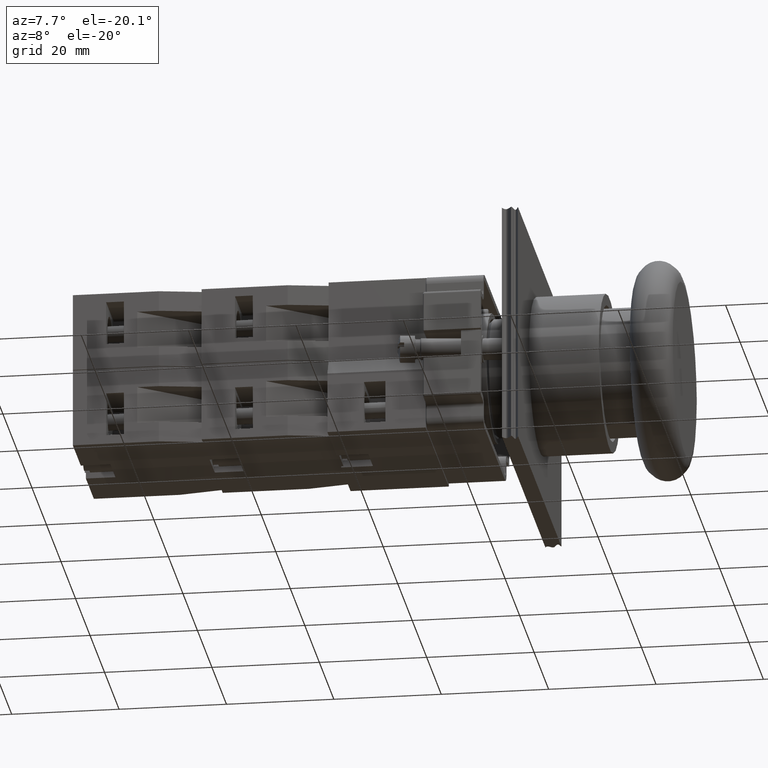
[diagram: clean part render]
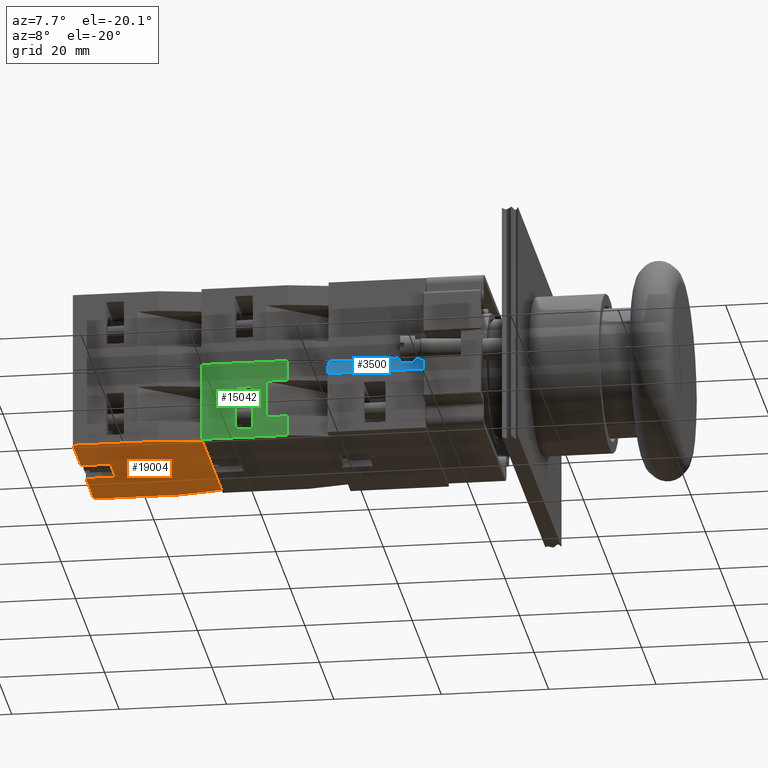
[diagram: same view with three faces highlighted in distinct colors, each labeled with its STEP entity id]
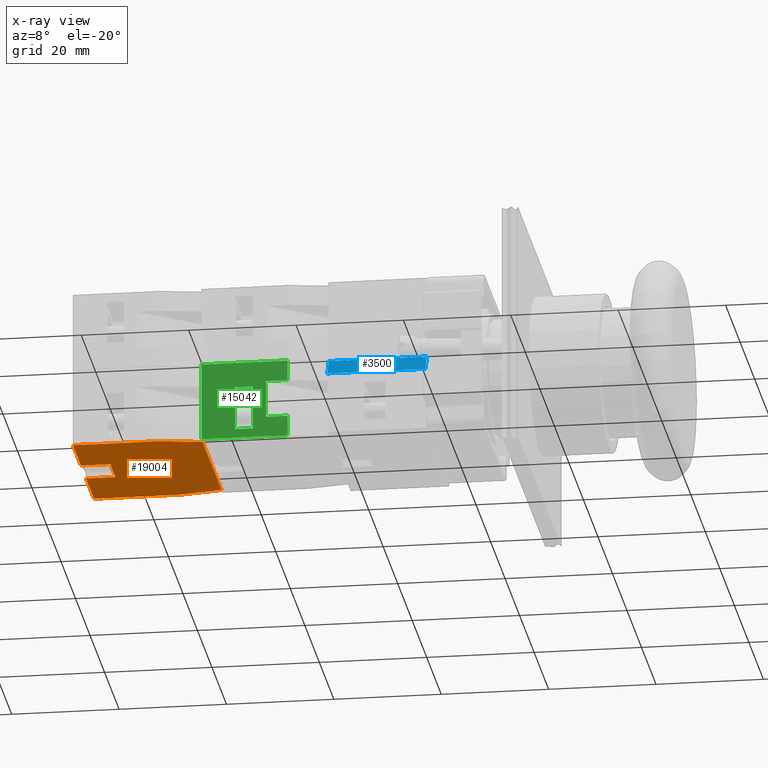
[diagram: x-ray of the same camera — body ghosted, the three highlighted faces saturated]
A machine part, auxiliary view with three faces highlighted in distinct colors.
The next image is the same camera in x-ray (body ghosted, the three faces saturated) — at least one of them is partly hidden behind the body in this view.
Their STEP definitions:

[orange] entity #19004 — the highlighted planar face has unit normal (-0, 0, -1).
#17307=CARTESIAN_POINT('',(-44.936741828918457,7.797073323279626,14.699999999999999));
#17308=VERTEX_POINT('',#17307);
#17315=CARTESIAN_POINT('',(-44.936741828918471,23.797073323279623,14.699999999999999));
#17316=VERTEX_POINT('',#17315);
#17317=CARTESIAN_POINT('',(-44.936741828918457,7.797073323279626,14.699999999999999));
#17318=DIRECTION('',(0.0,1.0,0.0));
#17319=VECTOR('',#17318,15.999999999999996);
#17320=LINE('',#17317,#17319);
#17321=EDGE_CURVE('',#17308,#17316,#17320,.T.);
#17388=CARTESIAN_POINT('',(-43.436741828918457,-0.202926676720380,14.699999999999999));
#17389=VERTEX_POINT('',#17388);
#17396=CARTESIAN_POINT('',(-43.436741828918457,-0.202926676720380,14.699999999999999));
#17397=DIRECTION('',(-0.184288535050185,0.982872186934322,0.0));
#17398=VECTOR('',#17397,8.139410298049860);
#17399=LINE('',#17396,#17398);
#17400=EDGE_CURVE('',#17389,#17308,#17399,.T.);
#17539=CARTESIAN_POINT('',(-17.436741828918457,-0.202926676720377,14.699999999999999));
#17540=VERTEX_POINT('',#17539);
#17547=CARTESIAN_POINT('',(-17.436741828918457,-0.202926676720377,14.699999999999999));
#17548=DIRECTION('',(-1.0,0.0,0.0));
#17549=VECTOR('',#17548,26.0);
#17550=LINE('',#17547,#17549);
#17551=EDGE_CURVE('',#17540,#17389,#17550,.T.);
#17632=CARTESIAN_POINT('',(-15.936741828918466,7.797073323279626,14.699999999999999));
#17633=VERTEX_POINT('',#17632);
#17640=CARTESIAN_POINT('',(-15.936741828918466,7.797073323279626,14.699999999999999));
#17641=DIRECTION('',(-0.184288535050184,-0.982872186934322,0.0));
#17642=VECTOR('',#17641,8.139410298049855);
#17643=LINE('',#17640,#17642);
#17644=EDGE_CURVE('',#17633,#17540,#17643,.T.);
#18739=CARTESIAN_POINT('',(-26.936741828918468,18.297073323279626,14.699999999999999));
#18740=VERTEX_POINT('',#18739);
#18749=CARTESIAN_POINT('',(-26.936741828918468,23.797073323279626,14.699999999999999));
#18750=VERTEX_POINT('',#18749);
#18751=CARTESIAN_POINT('',(-26.936741828918468,23.797073323279626,14.699999999999999));
#18752=DIRECTION('',(0.0,-1.0,0.0));
#18753=VECTOR('',#18752,5.500000000000000);
#18754=LINE('',#18751,#18753);
#18755=EDGE_CURVE('',#18750,#18740,#18754,.T.);
#18810=CARTESIAN_POINT('',(-33.936741828918464,18.297073323279619,14.699999999999999));
#18811=VERTEX_POINT('',#18810);
#18819=CARTESIAN_POINT('',(-33.936741828918464,23.797073323279623,14.699999999999999));
#18820=VERTEX_POINT('',#18819);
#18827=CARTESIAN_POINT('',(-33.936741828918464,18.297073323279619,14.699999999999999));
#18828=DIRECTION('',(0.0,1.0,0.0));
#18829=VECTOR('',#18828,5.500000000000004);
#18830=LINE('',#18827,#18829);
#18831=EDGE_CURVE('',#18811,#18820,#18830,.T.);
#18844=CARTESIAN_POINT('',(-26.936741828918468,18.297073323279626,14.699999999999999));
#18845=DIRECTION('',(-1.0,0.0,0.0));
#18846=VECTOR('',#18845,6.999999999999996);
#18847=LINE('',#18844,#18846);
#18848=EDGE_CURVE('',#18740,#18811,#18847,.T.);
#18864=CARTESIAN_POINT('',(-15.936741828918466,23.797073323279626,14.699999999999999));
#18865=VERTEX_POINT('',#18864);
#18866=CARTESIAN_POINT('',(-26.936741828918468,23.797073323279626,14.699999999999999));
#18867=DIRECTION('',(1.0,0.0,0.0));
#18868=VECTOR('',#18867,11.000000000000002);
#18869=LINE('',#18866,#18868);
#18870=EDGE_CURVE('',#18750,#18865,#18869,.T.);
#18887=CARTESIAN_POINT('',(-44.936741828918471,23.797073323279623,14.699999999999999));
#18888=DIRECTION('',(1.0,0.0,0.0));
#18889=VECTOR('',#18888,11.000000000000007);
#18890=LINE('',#18887,#18889);
#18891=EDGE_CURVE('',#17316,#18820,#18890,.T.);
#18935=CARTESIAN_POINT('',(-15.936741828918466,23.797073323279626,14.699999999999999));
#18936=DIRECTION('',(0.0,-1.0,0.0));
#18937=VECTOR('',#18936,16.0);
#18938=LINE('',#18935,#18937);
#18939=EDGE_CURVE('',#18865,#17633,#18938,.T.);
#18987=CARTESIAN_POINT('',(-30.436741828918457,12.124046801833057,14.699999999999999));
#18988=DIRECTION('',(0.0,0.0,1.0));
#18989=DIRECTION('',(1.0,0.0,0.0));
#18990=AXIS2_PLACEMENT_3D('',#18987,#18988,#18989);
#18991=PLANE('',#18990);
#18992=ORIENTED_EDGE('',*,*,#18831,.T.);
#18993=ORIENTED_EDGE('',*,*,#18891,.F.);
#18994=ORIENTED_EDGE('',*,*,#17321,.F.);
#18995=ORIENTED_EDGE('',*,*,#17400,.F.);
#18996=ORIENTED_EDGE('',*,*,#17551,.F.);
#18997=ORIENTED_EDGE('',*,*,#17644,.F.);
#18998=ORIENTED_EDGE('',*,*,#18939,.F.);
#18999=ORIENTED_EDGE('',*,*,#18870,.F.);
#19000=ORIENTED_EDGE('',*,*,#18755,.T.);
#19001=ORIENTED_EDGE('',*,*,#18848,.T.);
#19002=EDGE_LOOP('',(#18992,#18993,#18994,#18995,#18996,#18997,#18998,#18999,#19000,#19001));
#19003=FACE_OUTER_BOUND('',#19002,.T.);
#19004=ADVANCED_FACE('',(#19003),#18991,.T.);

[blue] entity #3500 — the highlighted planar face has unit normal (0, -0.8722, 0.4892).
#3219=CARTESIAN_POINT('',(-19.417123578269127,0.135901131475797,18.300000000000001));
#3220=VERTEX_POINT('',#3219);
#3227=CARTESIAN_POINT('',(-17.717123578269131,-2.895187781769739,18.300000000000001));
#3228=VERTEX_POINT('',#3227);
#3229=CARTESIAN_POINT('',(-17.717123578269131,-2.895187781769739,18.300000000000001));
#3230=DIRECTION('',(-0.489170657444979,0.872188092039124,0.0));
#3231=VECTOR('',#3230,3.475269773701028);
#3232=LINE('',#3229,#3231);
#3233=EDGE_CURVE('',#3228,#3220,#3232,.T.);
#3459=CARTESIAN_POINT('',(-17.717123578269131,-2.895187781769739,0.0));
#3460=VERTEX_POINT('',#3459);
#3461=CARTESIAN_POINT('',(-17.717123578269131,-2.895187781769739,0.0));
#3462=DIRECTION('',(0.0,0.0,1.0));
#3463=VECTOR('',#3462,18.300000000000001);
#3464=LINE('',#3461,#3463);
#3465=EDGE_CURVE('',#3460,#3228,#3464,.T.);
#3477=CARTESIAN_POINT('',(-17.717123578269131,-2.895187781769739,0.0));
#3478=DIRECTION('',(-0.872188092039124,-0.489170657444979,0.0));
#3479=DIRECTION('',(0.0,0.0,1.0));
#3480=AXIS2_PLACEMENT_3D('',#3477,#3478,#3479);
#3481=PLANE('',#3480);
#3482=ORIENTED_EDGE('',*,*,#3233,.T.);
#3483=CARTESIAN_POINT('',(-19.417123578269127,0.135901131475797,0.0));
#3484=VERTEX_POINT('',#3483);
#3485=CARTESIAN_POINT('',(-19.417123578269127,0.135901131475797,0.0));
#3486=DIRECTION('',(0.0,0.0,1.0));
#3487=VECTOR('',#3486,18.300000000000001);
#3488=LINE('',#3485,#3487);
#3489=EDGE_CURVE('',#3484,#3220,#3488,.T.);
#3490=ORIENTED_EDGE('',*,*,#3489,.F.);
#3491=CARTESIAN_POINT('',(-19.417123578269127,0.135901131475797,0.0));
#3492=DIRECTION('',(0.489170657444979,-0.872188092039124,0.0));
#3493=VECTOR('',#3492,3.475269773701028);
#3494=LINE('',#3491,#3493);
#3495=EDGE_CURVE('',#3484,#3460,#3494,.T.);
#3496=ORIENTED_EDGE('',*,*,#3495,.T.);
#3497=ORIENTED_EDGE('',*,*,#3465,.T.);
#3498=EDGE_LOOP('',(#3482,#3490,#3496,#3497));
#3499=FACE_OUTER_BOUND('',#3498,.T.);
#3500=ADVANCED_FACE('',(#3499),#3481,.T.);

[green] entity #15042 — the highlighted planar face has unit normal (0, -1, -0).
#13503=CARTESIAN_POINT('',(-15.936741828918466,7.797073323279626,10.850000000000000));
#13504=VERTEX_POINT('',#13503);
#13519=CARTESIAN_POINT('',(-15.936741828918466,11.797073323279626,10.850000000000000));
#13520=VERTEX_POINT('',#13519);
#13527=CARTESIAN_POINT('',(-15.936741828918466,7.797073323279626,10.850000000000000));
#13528=DIRECTION('',(0.0,1.0,0.0));
#13529=VECTOR('',#13528,4.0);
#13530=LINE('',#13527,#13529);
#13531=EDGE_CURVE('',#13504,#13520,#13530,.T.);
#13541=CARTESIAN_POINT('',(-15.936741828918466,11.797073323279626,3.850000000000001));
#13542=VERTEX_POINT('',#13541);
#13551=CARTESIAN_POINT('',(-15.936741828918466,11.797073323279626,10.850000000000000));
#13552=DIRECTION('',(0.0,0.0,-1.0));
#13553=VECTOR('',#13552,6.999999999999999);
#13554=LINE('',#13551,#13553);
#13555=EDGE_CURVE('',#13520,#13542,#13554,.T.);
#13572=CARTESIAN_POINT('',(-15.936741828918466,7.797073323279631,3.850000000000000));
#13573=VERTEX_POINT('',#13572);
#13582=CARTESIAN_POINT('',(-15.936741828918466,11.797073323279626,3.850000000000001));
#13583=DIRECTION('',(0.0,-1.0,0.0));
#13584=VECTOR('',#13583,3.999999999999996);
#13585=LINE('',#13582,#13584);
#13586=EDGE_CURVE('',#13542,#13573,#13585,.T.);
#13722=CARTESIAN_POINT('',(-15.936741828918466,7.797073323279626,14.699999999999999));
#13723=VERTEX_POINT('',#13722);
#13724=CARTESIAN_POINT('',(-15.936741828918466,7.797073323279626,10.850000000000000));
#13725=DIRECTION('',(0.0,0.0,1.0));
#13726=VECTOR('',#13725,3.850000000000000);
#13727=LINE('',#13724,#13726);
#13728=EDGE_CURVE('',#13504,#13723,#13727,.T.);
#14150=CARTESIAN_POINT('',(-15.936741828918466,17.597073323279638,4.800000000000001));
#14151=VERTEX_POINT('',#14150);
#14158=CARTESIAN_POINT('',(-15.936741828918466,17.597073323279638,13.0));
#14159=VERTEX_POINT('',#14158);
#14160=CARTESIAN_POINT('',(-15.936741828918466,17.597073323279638,13.0));
#14161=DIRECTION('',(0.0,0.0,-1.0));
#14162=VECTOR('',#14161,8.199999999999999);
#14163=LINE('',#14160,#14162);
#14164=EDGE_CURVE('',#14159,#14151,#14163,.T.);
#14241=CARTESIAN_POINT('',(-15.936741828918475,14.297073323279639,13.0));
#14242=VERTEX_POINT('',#14241);
#14243=CARTESIAN_POINT('',(-15.936741828918475,14.297073323279639,13.0));
#14244=DIRECTION('',(0.0,1.0,0.0));
#14245=VECTOR('',#14244,3.299999999999999);
#14246=LINE('',#14243,#14245);
#14247=EDGE_CURVE('',#14242,#14159,#14246,.T.);
#14459=CARTESIAN_POINT('',(-15.936741828918475,14.297073323279637,4.800000000000002));
#14460=VERTEX_POINT('',#14459);
#14467=CARTESIAN_POINT('',(-15.936741828918466,17.597073323279638,4.800000000000001));
#14468=DIRECTION('',(0.0,-1.0,0.0));
#14469=VECTOR('',#14468,3.300000000000001);
#14470=LINE('',#14467,#14469);
#14471=EDGE_CURVE('',#14151,#14460,#14470,.T.);
#14716=CARTESIAN_POINT('',(-15.936741828918475,14.297073323279637,4.800000000000002));
#14717=DIRECTION('',(0.0,0.0,1.0));
#14718=VECTOR('',#14717,8.199999999999999);
#14719=LINE('',#14716,#14718);
#14720=EDGE_CURVE('',#14460,#14242,#14719,.T.);
#14954=CARTESIAN_POINT('',(-15.936741828918466,23.797073323279626,14.699999999999999));
#14955=VERTEX_POINT('',#14954);
#14962=CARTESIAN_POINT('',(-15.936741828918466,23.797073323279626,0.0));
#14963=VERTEX_POINT('',#14962);
#14964=CARTESIAN_POINT('',(-15.936741828918466,23.797073323279626,0.0));
#14965=DIRECTION('',(0.0,0.0,1.0));
#14966=VECTOR('',#14965,14.699999999999999);
#14967=LINE('',#14964,#14966);
#14968=EDGE_CURVE('',#14963,#14955,#14967,.T.);
#15004=CARTESIAN_POINT('',(-15.936741828918466,23.797073323279626,0.0));
#15005=DIRECTION('',(1.0,0.0,0.0));
#15006=DIRECTION('',(0.0,0.0,-1.0));
#15007=AXIS2_PLACEMENT_3D('',#15004,#15005,#15006);
#15008=PLANE('',#15007);
#15009=ORIENTED_EDGE('',*,*,#13586,.T.);
#15010=CARTESIAN_POINT('',(-15.936741828918466,7.797073323279626,0.0));
#15011=VERTEX_POINT('',#15010);
#15012=CARTESIAN_POINT('',(-15.936741828918466,7.797073323279626,0.0));
#15013=DIRECTION('',(0.0,0.0,1.0));
#15014=VECTOR('',#15013,3.850000000000000);
#15015=LINE('',#15012,#15014);
#15016=EDGE_CURVE('',#15011,#13573,#15015,.T.);
#15017=ORIENTED_EDGE('',*,*,#15016,.F.);
#15018=CARTESIAN_POINT('',(-15.936741828918466,23.797073323279626,0.0));
#15019=DIRECTION('',(0.0,-1.0,0.0));
#15020=VECTOR('',#15019,16.0);
#15021=LINE('',#15018,#15020);
#15022=EDGE_CURVE('',#14963,#15011,#15021,.T.);
#15023=ORIENTED_EDGE('',*,*,#15022,.F.);
#15024=ORIENTED_EDGE('',*,*,#14968,.T.);
#15025=CARTESIAN_POINT('',(-15.936741828918466,23.797073323279626,14.699999999999999));
#15026=DIRECTION('',(0.0,-1.0,0.0));
#15027=VECTOR('',#15026,16.0);
#15028=LINE('',#15025,#15027);
#15029=EDGE_CURVE('',#14955,#13723,#15028,.T.);
#15030=ORIENTED_EDGE('',*,*,#15029,.T.);
#15031=ORIENTED_EDGE('',*,*,#13728,.F.);
#15032=ORIENTED_EDGE('',*,*,#13531,.T.);
#15033=ORIENTED_EDGE('',*,*,#13555,.T.);
#15034=EDGE_LOOP('',(#15009,#15017,#15023,#15024,#15030,#15031,#15032,#15033));
#15035=FACE_OUTER_BOUND('',#15034,.T.);
#15036=ORIENTED_EDGE('',*,*,#14471,.T.);
#15037=ORIENTED_EDGE('',*,*,#14720,.T.);
#15038=ORIENTED_EDGE('',*,*,#14247,.T.);
#15039=ORIENTED_EDGE('',*,*,#14164,.T.);
#15040=EDGE_LOOP('',(#15036,#15037,#15038,#15039));
#15041=FACE_BOUND('',#15040,.T.);
#15042=ADVANCED_FACE('',(#15035,#15041),#15008,.T.);